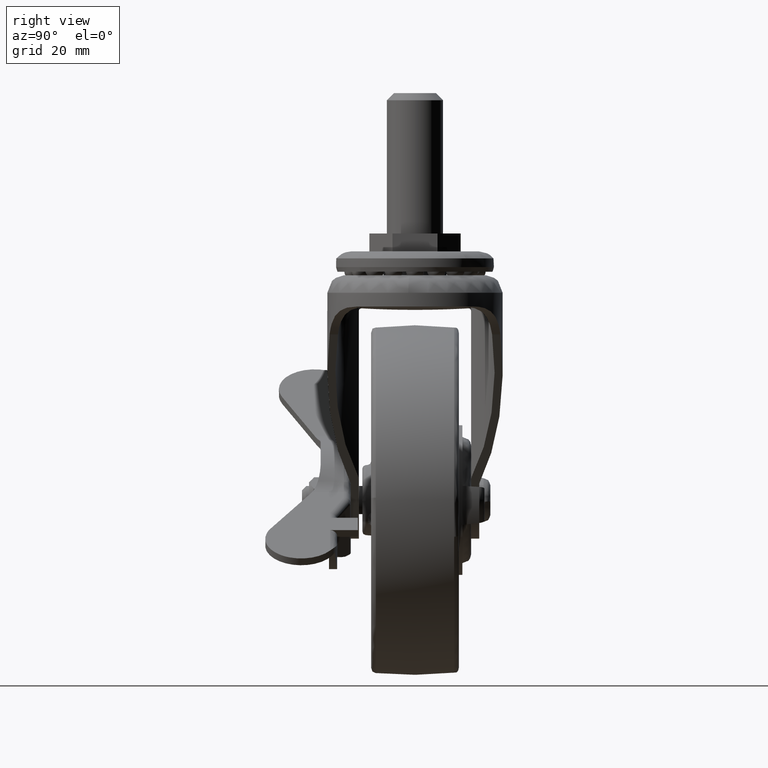
[diagram: clean part render]
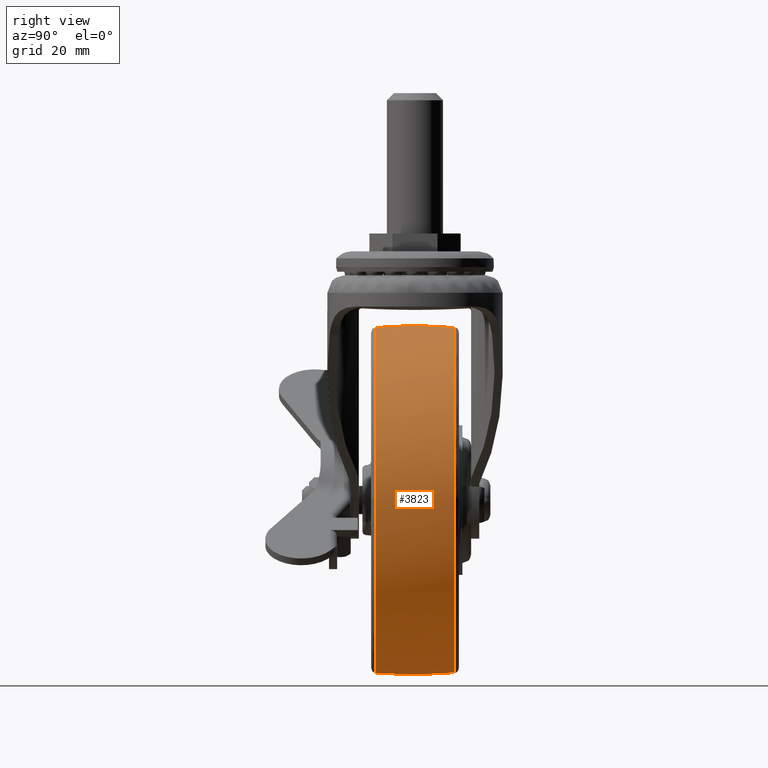
[diagram: same view with one face highlighted and labeled with its STEP entity id]
A machine part, right view. The second image highlights one B-rep face of the part: STEP entity #3823.
In plain terms, the highlighted face is a freeform B-spline surface patch.
Its self-contained STEP definition (entity closure, byte-faithful):
#2693=CARTESIAN_POINT('',(13.453441770170880,-11.167512577570230,-47.506233974520903));
#2694=VERTEX_POINT('',#2693);
#2705=CARTESIAN_POINT('',(49.125185510513532,-11.167506534377891,4.955323121741722));
#2706=VERTEX_POINT('',#2705);
#2707=CARTESIAN_POINT('',(13.453441770170880,-11.167512577570230,-47.506233974520903));
#2708=CARTESIAN_POINT('',(16.301862604207962,-11.167512494498540,-46.699884526945752));
#2709=CARTESIAN_POINT('',(20.591164537898660,-11.167512318656360,-45.055910921292913));
#2710=CARTESIAN_POINT('',(25.936512042780329,-11.167511992570610,-42.101546421491612));
#2711=CARTESIAN_POINT('',(30.012258032747340,-11.167511680479199,-39.311552793595453));
#2712=CARTESIAN_POINT('',(33.650666163706028,-11.167511333270490,-36.239992172838548));
#2713=CARTESIAN_POINT('',(37.156732354823532,-11.167510922565130,-32.635535299200292));
#2714=CARTESIAN_POINT('',(41.023267162107587,-11.167510366848351,-27.790121649003421));
#2715=CARTESIAN_POINT('',(44.159786326308812,-11.167509746626340,-22.424862323571809));
#2716=CARTESIAN_POINT('',(46.546409479497463,-11.167509081594700,-16.707257960333209));
#2717=CARTESIAN_POINT('',(48.152234750692557,-11.167508469666201,-11.467530282545139));
#2718=CARTESIAN_POINT('',(49.449740569236447,-11.167507607285881,-4.118157900033976));
#2719=CARTESIAN_POINT('',(49.467827037517928,-11.167506936372879,1.563675063048136));
#2720=CARTESIAN_POINT('',(49.125185510513532,-11.167506534377891,4.955323121741722));
#2721=B_SPLINE_CURVE_WITH_KNOTS('',3,(#2707,#2708,#2709,#2710,#2711,#2712,#2713,#2714,#2715,#2716,#2717,#2718,#2719,#2720),.UNSPECIFIED.,.F.,.U.,(4,1,1,1,1,1,1,1,1,1,1,4),(0.000000060299101,8.881000726065977,13.725215121325130,18.300307178949751,23.682748668782651,27.988738057429991,33.371153907908543,42.252167514753367,46.558105840479911,51.940567462661342,58.668645116428287,68.895259570505985),.UNSPECIFIED.);
#2722=EDGE_CURVE('',#2694,#2706,#2721,.T.);
#2842=CARTESIAN_POINT('',(0.0,-11.167501450984091,49.374494168904697));
#2843=VERTEX_POINT('',#2842);
#2844=CARTESIAN_POINT('',(49.125185510513532,-11.167506534377891,4.955323121741722));
#2845=CARTESIAN_POINT('',(48.803079872278559,-11.167506168437010,8.152948827774448));
#2846=CARTESIAN_POINT('',(47.811407989592297,-11.167505603677210,13.087872898753210));
#2847=CARTESIAN_POINT('',(45.569335293219531,-11.167504901584151,19.222827756679969));
#2848=CARTESIAN_POINT('',(43.301599290252739,-11.167504365517830,23.907025476445490));
#2849=CARTESIAN_POINT('',(40.311880350299717,-11.167503812722661,28.737401379058578));
#2850=CARTESIAN_POINT('',(36.257703874231780,-11.167503239672950,33.744763789549388));
#2851=CARTESIAN_POINT('',(31.208079216208588,-11.167502698755960,38.471345691252189));
#2852=CARTESIAN_POINT('',(26.165017679570909,-11.167502293970930,42.008398585947113));
#2853=CARTESIAN_POINT('',(21.416078674648030,-11.167502001359219,44.565260923407152));
#2854=CARTESIAN_POINT('',(16.888010056458921,-11.167501781026701,46.490552938258517));
#2855=CARTESIAN_POINT('',(12.182639562422910,-11.167501615248179,47.939138561418282));
#2856=CARTESIAN_POINT('',(6.427510802499208,-11.167501484980320,49.077432582026653));
#2857=CARTESIAN_POINT('',(2.457601251934463,-11.167501450968160,49.374632903972902));
#2858=CARTESIAN_POINT('',(0.0,-11.167501450984091,49.374494168904697));
#2859=B_SPLINE_CURVE_WITH_KNOTS('',3,(#2844,#2845,#2846,#2847,#2848,#2849,#2850,#2851,#2852,#2853,#2854,#2855,#2856,#2857,#2858),.UNSPECIFIED.,.F.,.U.,(4,1,1,1,1,1,1,1,1,1,1,1,4),(0.000000063015108,9.641319270503331,15.029160375853680,19.566267412620110,25.237659229837210,32.043353224618208,38.848951804636840,45.938186119845383,50.475295307306403,55.012401048038413,60.683783374001187,65.220900403132191,72.593683785820559),.UNSPECIFIED.);
#2860=EDGE_CURVE('',#2706,#2843,#2859,.T.);
#2862=CARTESIAN_POINT('',(-49.044247251732713,-11.167514821191080,5.700959570039594));
#2863=VERTEX_POINT('',#2862);
#2882=CARTESIAN_POINT('',(0.0,-11.167512887776240,-49.374460883661492));
#2883=VERTEX_POINT('',#2882);
#2884=CARTESIAN_POINT('',(-49.044247251732713,-11.167514821191080,5.700959570039594));
#2885=CARTESIAN_POINT('',(-49.357433310247963,-11.167514773935020,3.008470998306104));
#2886=CARTESIAN_POINT('',(-49.513174877155770,-11.167514685107991,-1.667045598170042));
#2887=CARTESIAN_POINT('',(-48.820667826448890,-11.167514548298680,-8.037894416472760));
#2888=CARTESIAN_POINT('',(-47.658233536806883,-11.167514426382580,-13.229607371032420));
#2889=CARTESIAN_POINT('',(-46.076114906297342,-11.167514306063120,-17.966045451961950));
#2890=CARTESIAN_POINT('',(-43.990054198491961,-11.167514178526140,-22.622361588614659));
#2891=CARTESIAN_POINT('',(-41.315593734832738,-11.167514041827690,-27.222633345411950));
#2892=CARTESIAN_POINT('',(-37.431907318685852,-11.167513871680800,-32.454473994687760));
#2893=CARTESIAN_POINT('',(-32.838785978225467,-11.167513700739470,-37.095145458132507));
#2894=CARTESIAN_POINT('',(-27.214729848721689,-11.167513519165960,-41.360808943007953));
#2895=CARTESIAN_POINT('',(-22.121635188336189,-11.167513373212570,-44.280002610552522));
#2896=CARTESIAN_POINT('',(-16.118640996394500,-11.167513219056580,-46.807880407733379));
#2897=CARTESIAN_POINT('',(-8.999206264557984,-11.167513055837050,-48.804503260606609));
#2898=CARTESIAN_POINT('',(-3.252780991014212,-11.167512944480301,-49.374882459802507));
#2899=CARTESIAN_POINT('',(0.0,-11.167512887776240,-49.374460883661492));
#2900=B_SPLINE_CURVE_WITH_KNOTS('',3,(#2884,#2885,#2886,#2887,#2888,#2889,#2890,#2891,#2892,#2893,#2894,#2895,#2896,#2897,#2898,#2899),.UNSPECIFIED.,.F.,.U.,(4,1,1,1,1,1,1,1,1,1,1,1,1,4),(0.000000047145519,8.131900191515967,13.986924148776181,19.191382794213819,24.070555339562151,28.949736130222799,34.479483617684849,40.009221288743817,48.466323890152452,53.996072686556097,61.152200758661209,66.031378529001529,73.512787763201359,83.271084863329506),.UNSPECIFIED.);
#2901=EDGE_CURVE('',#2863,#2883,#2900,.T.);
#2903=CARTESIAN_POINT('',(0.0,-11.167512887776240,-49.374460883661492));
#2904=CARTESIAN_POINT('',(2.554833333006771,-11.167512887802079,-49.374616631835742));
#2905=CARTESIAN_POINT('',(7.096685888381279,-11.167512829102400,-49.021095351909949));
#2906=CARTESIAN_POINT('',(11.541553336189679,-11.167512667480130,-48.047719658770383));
#2907=CARTESIAN_POINT('',(13.453441770170880,-11.167512577570230,-47.506233974520903));
#2908=B_SPLINE_CURVE_WITH_KNOTS('',3,(#2903,#2904,#2905,#2906,#2907),.UNSPECIFIED.,.F.,.U.,(4,1,4),(2.395097E-009,7.664475417653734,13.625746315457910),.UNSPECIFIED.);
#2909=EDGE_CURVE('',#2883,#2694,#2908,.T.);
#2938=CARTESIAN_POINT('',(48.985143232747767,11.167500819042701,-6.188246697697730));
#2939=VERTEX_POINT('',#2938);
#2940=CARTESIAN_POINT('',(0.0,11.167485628169199,49.374495070906320));
#2941=VERTEX_POINT('',#2940);
#2942=CARTESIAN_POINT('',(48.985143232747767,11.167500819042701,-6.188246697697730));
#2943=CARTESIAN_POINT('',(49.368281011051756,11.167499987256710,-3.158535009868255));
#2944=CARTESIAN_POINT('',(49.508130496285617,11.167498815544761,1.110980685789249));
#2945=CARTESIAN_POINT('',(48.867833632473221,11.167496997951771,7.737516021742550));
#2946=CARTESIAN_POINT('',(47.706541195311750,11.167495471787960,13.304141897393670));
#2947=CARTESIAN_POINT('',(45.620164365132332,11.167493863632901,19.173391710027680));
#2948=CARTESIAN_POINT('',(42.822192495143149,11.167492307317600,24.856659844728838));
#2949=CARTESIAN_POINT('',(39.431031264383769,11.167490911458289,29.957625635463462));
#2950=CARTESIAN_POINT('',(34.609180445497671,11.167489406046720,35.463743616492742));
#2951=CARTESIAN_POINT('',(29.275236723076521,11.167488164794049,40.009298951695612));
#2952=CARTESIAN_POINT('',(23.777216956303960,11.167487246106051,43.380000208431177));
#2953=CARTESIAN_POINT('',(18.947370226067950,11.167486621170850,45.677415871495533));
#2954=CARTESIAN_POINT('',(14.634241968817831,11.167486196845701,47.241607671912973));
#2955=CARTESIAN_POINT('',(8.179667908305834,11.167485754713240,48.879541315116562));
#2956=CARTESIAN_POINT('',(3.381059544659552,11.167485624176949,49.375078291151482));
#2957=CARTESIAN_POINT('',(0.0,11.167485628169199,49.374495070906320));
#2958=B_SPLINE_CURVE_WITH_KNOTS('',3,(#2942,#2943,#2944,#2945,#2946,#2947,#2948,#2949,#2950,#2951,#2952,#2953,#2954,#2955,#2956,#2957),.UNSPECIFIED.,.F.,.U.,(4,1,1,1,1,1,1,1,1,1,1,1,1,4),(0.000000050914295,9.161425319111487,12.760607293199371,19.958909347735720,26.175638618479791,31.410781139700010,38.936258948320528,44.498515215352207,53.332813964979891,59.876720442246082,63.803074784038962,69.365409469907632,73.618967543790717,83.761980734006329),.UNSPECIFIED.);
#2959=EDGE_CURVE('',#2939,#2941,#2958,.T.);
#3070=CARTESIAN_POINT('',(0.0,11.167512474098420,-49.374459177890202));
#3071=VERTEX_POINT('',#3070);
#3072=CARTESIAN_POINT('',(0.0,11.167512474098420,-49.374459177890202));
#3073=CARTESIAN_POINT('',(3.623446264524006,11.167512474279420,-49.375130070976212));
#3074=CARTESIAN_POINT('',(8.640136701454260,11.167512324382241,-48.819706075769631));
#3075=CARTESIAN_POINT('',(15.195861584090240,11.167511848907781,-47.057900996028778));
#3076=CARTESIAN_POINT('',(20.684976240675120,11.167511293980180,-45.001692449551747));
#3077=CARTESIAN_POINT('',(25.937836739806230,11.167510530627791,-42.173195163504587));
#3078=CARTESIAN_POINT('',(31.156984658473661,11.167509522988000,-38.439523506008143));
#3079=CARTESIAN_POINT('',(34.891119923630733,11.167508614103101,-35.071775335986253));
#3080=CARTESIAN_POINT('',(39.044066602883682,11.167507360937909,-30.428344025604108));
#3081=CARTESIAN_POINT('',(42.720014300807087,11.167505936461280,-25.150138452402850));
#3082=CARTESIAN_POINT('',(45.655873808024850,11.167504308901290,-19.119440444096981));
#3083=CARTESIAN_POINT('',(47.806485003789973,11.167502623768240,-12.875409808447850));
#3084=CARTESIAN_POINT('',(48.659287381052202,11.167501515579540,-8.769168530818352));
#3085=CARTESIAN_POINT('',(48.985143232747767,11.167500819042701,-6.188246697697730));
#3086=B_SPLINE_CURVE_WITH_KNOTS('',3,(#3072,#3073,#3074,#3075,#3076,#3077,#3078,#3079,#3080,#3081,#3082,#3083,#3084,#3085),.UNSPECIFIED.,.F.,.U.,(4,1,1,1,1,1,1,1,1,1,1,4),(0.000000063127331,10.870139547690940,15.050972625421119,20.346686137549032,28.429653321865558,32.889214987449080,39.578434088485217,43.480584685383022,51.563510909991663,58.810301807964528,63.548554415891793,71.352759382503763),.UNSPECIFIED.);
#3087=EDGE_CURVE('',#3071,#2939,#3086,.T.);
#3089=CARTESIAN_POINT('',(-49.044248125281300,11.167499099310250,5.700959768865777));
#3090=VERTEX_POINT('',#3089);
#3091=CARTESIAN_POINT('',(-49.044248125281300,11.167499099310250,5.700959768865777));
#3092=CARTESIAN_POINT('',(-49.257116312910377,11.167499321616321,3.870068445260268));
#3093=CARTESIAN_POINT('',(-49.477428888647090,11.167499794239230,0.184404768480838));
#3094=CARTESIAN_POINT('',(-49.171139379785480,11.167500624354430,-5.671767067565559));
#3095=CARTESIAN_POINT('',(-48.210857605801642,11.167501479404120,-11.129659467590800));
#3096=CARTESIAN_POINT('',(-46.372822669310153,11.167502547300749,-17.377414898113209));
#3097=CARTESIAN_POINT('',(-43.987928754233351,11.167503562372429,-22.748181047320710));
#3098=CARTESIAN_POINT('',(-40.869053062963673,11.167504627984099,-27.838482788203262));
#3099=CARTESIAN_POINT('',(-37.278812846799397,11.167505707155200,-32.609160363291281));
#3100=CARTESIAN_POINT('',(-32.532599794111157,11.167506929100590,-37.404575899169039));
#3101=CARTESIAN_POINT('',(-26.848111664017090,11.167508182830810,-41.599143527386033));
#3102=CARTESIAN_POINT('',(-21.246725811520442,11.167509280073920,-44.712336438971562));
#3103=CARTESIAN_POINT('',(-15.600508560404140,11.167510268374221,-46.981255514660219));
#3104=CARTESIAN_POINT('',(-8.457035643812196,11.167511384169970,-48.858208623743622));
#3105=CARTESIAN_POINT('',(-3.252797081442237,11.167512081834140,-49.374878375146480));
#3106=CARTESIAN_POINT('',(0.0,11.167512474098420,-49.374459177890202));
#3107=B_SPLINE_CURVE_WITH_KNOTS('',3,(#3091,#3092,#3093,#3094,#3095,#3096,#3097,#3098,#3099,#3100,#3101,#3102,#3103,#3104,#3105,#3106),.UNSPECIFIED.,.F.,.U.,(4,1,1,1,1,1,1,1,1,1,1,1,1,4),(0.000000047080775,5.529677536005210,11.059406526620711,17.564984249211079,22.118886579086350,30.576113338074538,35.130030894334823,40.009220771074020,48.466323263077207,55.297181444828659,61.152199967463488,67.657774868719699,73.512786812091363,83.271083785974085),.UNSPECIFIED.);
#3108=EDGE_CURVE('',#3090,#3071,#3107,.T.);
#3745=CARTESIAN_POINT('',(-48.912141797698162,-12.293386680871293,5.685645083880570));
#3746=CARTESIAN_POINT('',(-49.665582081654208,-6.170093837611956,5.773226241318850));
#3747=CARTESIAN_POINT('',(-49.665582081654193,0.0,5.773226241318849));
#3748=CARTESIAN_POINT('',(-49.665582081654186,6.170090758022482,5.773226241318846));
#3749=CARTESIAN_POINT('',(-48.912142546953007,12.293380591592436,5.685645170975202));
#3750=CARTESIAN_POINT('',(-49.241486505969760,-12.293386680871292,2.852369322545358));
#3751=CARTESIAN_POINT('',(-49.999999999999993,-6.170093837611954,2.896306836182978));
#3752=CARTESIAN_POINT('',(-50.0,0.0,2.896306836182978));
#3753=CARTESIAN_POINT('',(-50.0,6.170090758022481,2.896306836182979));
#3754=CARTESIAN_POINT('',(-49.241487260269615,12.293380591592436,2.852369366238793));
#3755=CARTESIAN_POINT('',(-49.241486505969753,-12.293386680871301,0.000015999999901));
#3756=CARTESIAN_POINT('',(-50.000000000000007,-6.170093837611955,0.000015999999901));
#3757=CARTESIAN_POINT('',(-50.0,0.0,0.000015999999901));
#3758=CARTESIAN_POINT('',(-50.0,6.170090758022482,0.000015999999901));
#3759=CARTESIAN_POINT('',(-49.241487260269629,12.293380591592440,0.000015999999901));
#3760=CARTESIAN_POINT('',(-49.241486505969753,-12.293386680871295,-49.241470505969865));
#3761=CARTESIAN_POINT('',(-49.999999999999993,-6.170093837611955,-49.999984000000111));
#3762=CARTESIAN_POINT('',(-50.0,0.0,-49.999984000000111));
#3763=CARTESIAN_POINT('',(-50.000000000000014,6.170090758022482,-49.999984000000111));
#3764=CARTESIAN_POINT('',(-49.241487260269629,12.293380591592436,-49.241471260269734));
#3765=CARTESIAN_POINT('',(0.0,-12.293386680871301,-49.241470505969872));
#3766=CARTESIAN_POINT('',(0.0,-6.170093837611955,-49.999984000000119));
#3767=CARTESIAN_POINT('',(0.0,0.0,-49.999984000000097));
#3768=CARTESIAN_POINT('',(0.0,6.170090758022482,-49.999984000000111));
#3769=CARTESIAN_POINT('',(0.0,12.293380591592440,-49.241471260269726));
#3770=CARTESIAN_POINT('',(49.241486505969753,-12.293386680871295,-49.241470505969865));
#3771=CARTESIAN_POINT('',(49.999999999999993,-6.170093837611955,-49.999984000000111));
#3772=CARTESIAN_POINT('',(50.0,0.0,-49.999984000000111));
#3773=CARTESIAN_POINT('',(50.000000000000014,6.170090758022482,-49.999984000000111));
#3774=CARTESIAN_POINT('',(49.241487260269629,12.293380591592436,-49.241471260269734));
#3775=CARTESIAN_POINT('',(49.241486505969753,-12.293386680871301,0.000015999999901));
#3776=CARTESIAN_POINT('',(50.000000000000007,-6.170093837611955,0.000015999999901));
#3777=CARTESIAN_POINT('',(50.0,0.0,0.000015999999901));
#3778=CARTESIAN_POINT('',(50.0,6.170090758022482,0.000015999999901));
#3779=CARTESIAN_POINT('',(49.241487260269629,12.293380591592440,0.000015999999901));
#3780=CARTESIAN_POINT('',(49.241486505969753,-12.293386680871295,49.241502505969663));
#3781=CARTESIAN_POINT('',(49.999999999999993,-6.170093837611955,50.000015999999910));
#3782=CARTESIAN_POINT('',(50.0,0.0,50.000015999999910));
#3783=CARTESIAN_POINT('',(50.000000000000014,6.170090758022482,50.000015999999910));
#3784=CARTESIAN_POINT('',(49.241487260269629,12.293380591592436,49.241503260269532));
#3785=CARTESIAN_POINT('',(0.0,-12.293386680871301,49.241502505969656));
#3786=CARTESIAN_POINT('',(0.0,-6.170093837611955,50.000015999999903));
#3787=CARTESIAN_POINT('',(0.0,0.0,50.000015999999903));
#3788=CARTESIAN_POINT('',(0.0,6.170090758022482,50.000015999999903));
#3789=CARTESIAN_POINT('',(0.0,12.293380591592440,49.241503260269539));
#3797=(BOUNDED_SURFACE()B_SPLINE_SURFACE(2,2,((#3745,#3750,#3755,#3760,#3765,#3770,#3775,#3780,#3785),(#3746,#3751,#3756,#3761,#3766,#3771,#3776,#3781,#3786),(#3747,#3752,#3757,#3762,#3767,#3772,#3777,#3782,#3787),(#3748,#3753,#3758,#3763,#3768,#3773,#3778,#3783,#3788),(#3749,#3754,#3759,#3764,#3769,#3774,#3779,#3784,#3789)),.UNSPECIFIED.,.F.,.F.,.U.)B_SPLINE_SURFACE_WITH_KNOTS((3,2,3),(3,2,2,2,3),(0.0,12.496629759044810,24.993253382269739),(0.0,6.627415615382596,89.470128090001623,172.312840564620590,255.155553039239690),.UNSPECIFIED.)GEOMETRIC_REPRESENTATION_ITEM()RATIONAL_B_SPLINE_SURFACE(((0.929539305940074,0.948659223590073,0.971421029411789,0.686898397284292,0.971421029411789,0.686898397284292,0.971421029411789,0.686898397284292,0.971421029411789),(0.941323491873215,0.960685801279188,0.983736168703693,0.695606515788855,0.983736168703693,0.695606515788855,0.983736168703693,0.695606515788855,0.983736168703693),(0.956886126402807,0.976568547383107,1.0,0.707106781186548,1.0,0.707106781186548,1.0,0.707106781186548,1.0),(0.941323499514438,0.960685809077585,0.983736176689201,0.695606521435462,0.983736176689201,0.695606521435462,0.983736176689201,0.695606521435462,0.983736176689201),(0.929539317512098,0.948659235400124,0.971421041505206,0.686898405835630,0.971421041505206,0.686898405835630,0.971421041505206,0.686898405835630,0.971421041505206)))REPRESENTATION_ITEM('')SURFACE());
#3798=ORIENTED_EDGE('',*,*,#2901,.F.);
#3799=CARTESIAN_POINT('',(-49.044247251732713,-11.167514821191080,5.700959570039594));
#3800=CARTESIAN_POINT('',(-49.354610011746452,-8.387303889884853,5.737036675679136));
#3801=CARTESIAN_POINT('',(-49.872964753813243,-0.938417164171426,5.797291142355556));
#3802=CARTESIAN_POINT('',(-49.561742900101372,6.533824870005634,5.761114218863781));
#3803=CARTESIAN_POINT('',(-49.044248125281300,11.167499099310250,5.700959768865777));
#3804=B_SPLINE_CURVE_WITH_KNOTS('',3,(#3799,#3800,#3801,#3802,#3803),.UNSPECIFIED.,.F.,.U.,(4,1,4),(1.173444E-009,8.393145745786477,22.381712338014459),.UNSPECIFIED.);
#3805=EDGE_CURVE('',#2863,#3090,#3804,.T.);
#3806=ORIENTED_EDGE('',*,*,#3805,.T.);
#3807=ORIENTED_EDGE('',*,*,#3108,.T.);
#3808=ORIENTED_EDGE('',*,*,#3087,.T.);
#3809=ORIENTED_EDGE('',*,*,#2959,.T.);
#3810=CARTESIAN_POINT('',(0.0,-11.167501450984091,49.374494168904697));
#3811=CARTESIAN_POINT('',(0.0,-6.765513646024126,49.869360921288163));
#3812=CARTESIAN_POINT('',(0.0,0.703797632541673,50.208850699909220));
#3813=CARTESIAN_POINT('',(0.0,8.155595678399797,49.712990422872423));
#3814=CARTESIAN_POINT('',(0.0,11.167485628169199,49.374495070906320));
#3815=B_SPLINE_CURVE_WITH_KNOTS('',3,(#3810,#3811,#3812,#3813,#3814),.UNSPECIFIED.,.F.,.U.,(4,1,4),(1.173643E-009,13.289124208139340,22.381685397626299),.UNSPECIFIED.);
#3816=EDGE_CURVE('',#2843,#2941,#3815,.T.);
#3817=ORIENTED_EDGE('',*,*,#3816,.F.);
#3818=ORIENTED_EDGE('',*,*,#2860,.F.);
#3819=ORIENTED_EDGE('',*,*,#2722,.F.);
#3820=ORIENTED_EDGE('',*,*,#2909,.F.);
#3821=EDGE_LOOP('',(#3798,#3806,#3807,#3808,#3809,#3817,#3818,#3819,#3820));
#3822=FACE_OUTER_BOUND('',#3821,.T.);
#3823=ADVANCED_FACE('',(#3822),#3797,.T.);